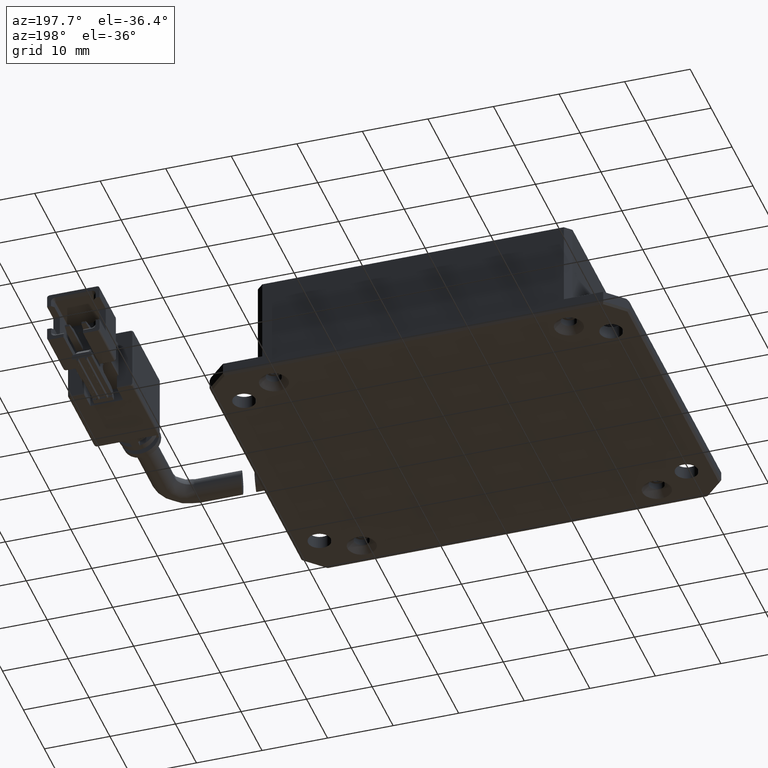
[diagram: clean part render]
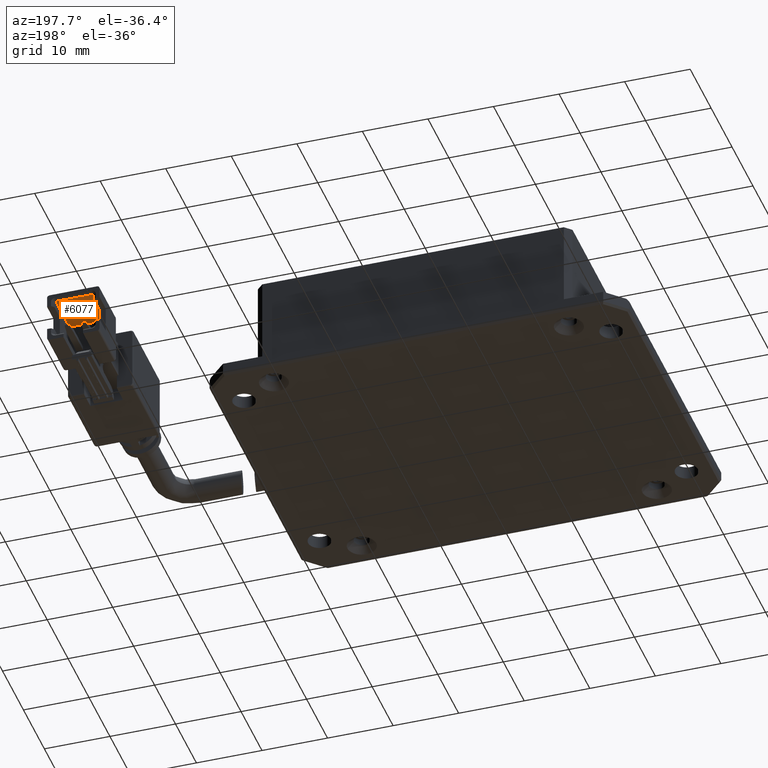
[diagram: same view with one face highlighted and labeled with its STEP entity id]
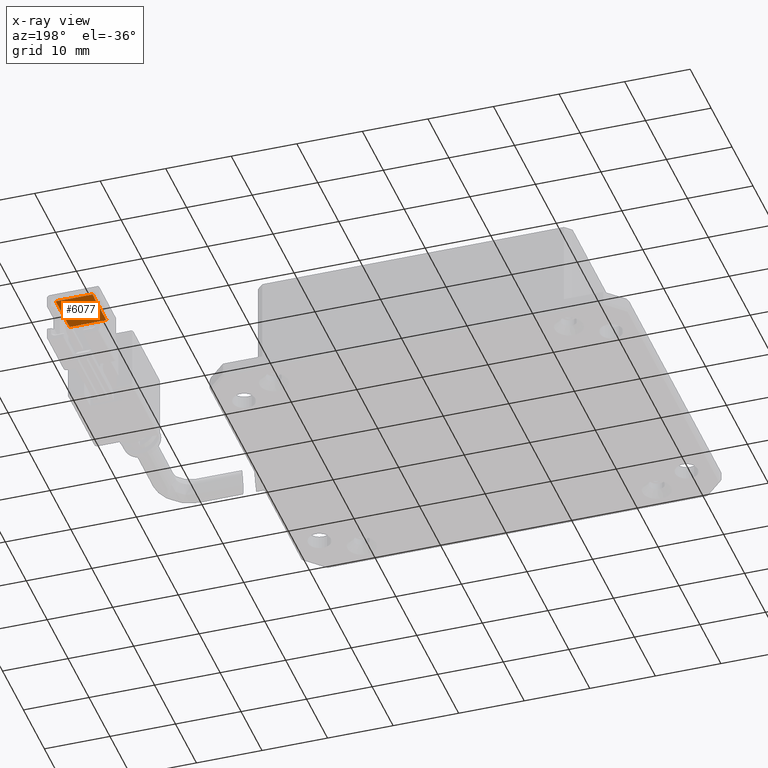
[diagram: x-ray of the same camera — body ghosted, the highlighted face saturated]
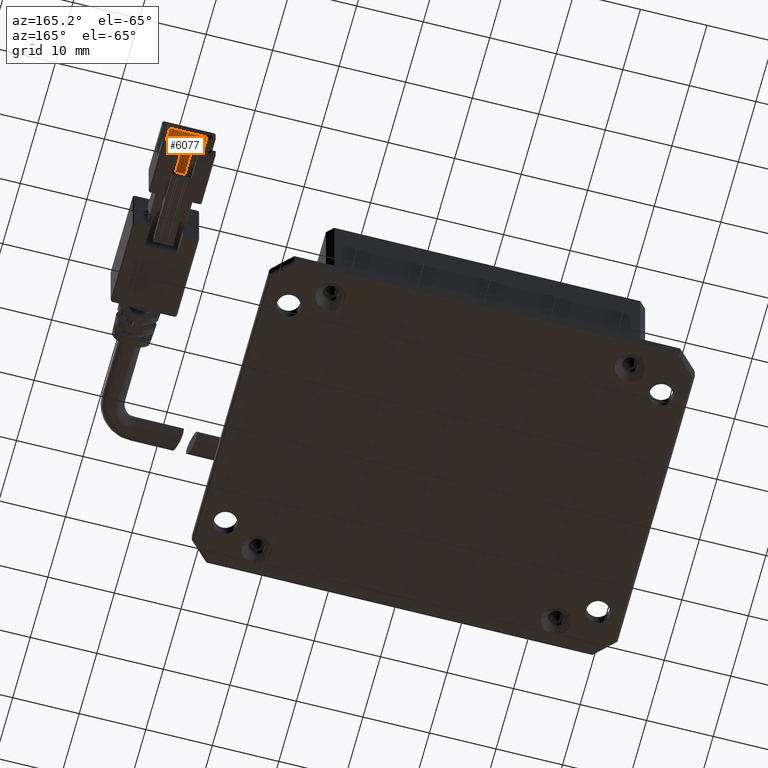
[diagram: same view with one face highlighted and labeled with its STEP entity id]
A machine part, auxiliary view. The second image highlights one B-rep face of the part: STEP entity #6077.
The next image is the same camera in x-ray: the body ghosted, the highlighted face saturated — about 0% of this face is hidden behind the body in this view.
A second angle (auxiliary view) of the same face is appended — the face is thin or edge-on in the first view.
In plain terms, the highlighted planar face has unit normal (-0, 0, 1).
Its self-contained STEP definition (entity closure, byte-faithful):
#253 = EDGE_LOOP ( 'NONE', ( #10387, #15920, #12951, #11914 ) ) ;
#542 = CARTESIAN_POINT ( 'NONE',  ( 50.09316533027873700, 32.29095074455903400, 7.999999999983693900 ) ) ;
#1178 = LINE ( 'NONE', #17366, #8606 ) ;
#1831 = VECTOR ( 'NONE', #6989, 1000.000000000000000 ) ;
#3221 = DIRECTION ( 'NONE',  ( -1.000000000000000000, -3.081487911019577400E-033, -8.673617379884010800E-017 ) ) ;
#3717 = FACE_OUTER_BOUND ( 'NONE', #253, .T. ) ;
#4481 = EDGE_CURVE ( 'NONE', #18850, #12792, #6058, .T. ) ;
#6058 = LINE ( 'NONE', #11597, #1831 ) ;
#6077 = ADVANCED_FACE ( 'NONE', ( #3717 ), #20073, .F. ) ;
#6894 = DIRECTION ( 'NONE',  ( 1.000000000000000000, 3.081487911019577400E-033, 8.673617379884010800E-017 ) ) ;
#6989 = DIRECTION ( 'NONE',  ( 3.081487911019577400E-033, -1.000000000000000000, 2.672764710092188000E-049 ) ) ;
#7118 = VECTOR ( 'NONE', #3221, 1000.000000000000000 ) ;
#7493 = DIRECTION ( 'NONE',  ( -8.673617379884010800E-017, 0.0000000000000000000, 1.000000000000000000 ) ) ;
#8606 = VECTOR ( 'NONE', #11061, 1000.000000000000000 ) ;
#8898 = EDGE_CURVE ( 'NONE', #12792, #14946, #14815, .T. ) ;
#10218 = CARTESIAN_POINT ( 'NONE',  ( 44.29316533027874700, 38.89095074455903500, 7.999999999983693900 ) ) ;
#10387 = ORIENTED_EDGE ( 'NONE', *, *, #15478, .F. ) ;
#10661 = AXIS2_PLACEMENT_3D ( 'NONE', #16943, #7493, #18556 ) ;
#11061 = DIRECTION ( 'NONE',  ( -3.081487911019577400E-033, 1.000000000000000000, -2.672764710092188000E-049 ) ) ;
#11158 = CARTESIAN_POINT ( 'NONE',  ( 44.09316533027873700, 38.89095074455903500, 7.999999999983693900 ) ) ;
#11597 = CARTESIAN_POINT ( 'NONE',  ( 44.29316533027874700, 32.29095074455903400, 7.999999999983693900 ) ) ;
#11914 = ORIENTED_EDGE ( 'NONE', *, *, #4481, .F. ) ;
#12792 = VERTEX_POINT ( 'NONE', #15049 ) ;
#12951 = ORIENTED_EDGE ( 'NONE', *, *, #8898, .F. ) ;
#14307 = VECTOR ( 'NONE', #6894, 1000.000000000000000 ) ;
#14815 = LINE ( 'NONE', #542, #14307 ) ;
#14946 = VERTEX_POINT ( 'NONE', #15843 ) ;
#15049 = CARTESIAN_POINT ( 'NONE',  ( 44.29316533027874700, 32.29095074455903400, 7.999999999983693900 ) ) ;
#15066 = VERTEX_POINT ( 'NONE', #16201 ) ;
#15478 = EDGE_CURVE ( 'NONE', #15066, #18850, #19739, .T. ) ;
#15843 = CARTESIAN_POINT ( 'NONE',  ( 49.89316533027874100, 32.29095074455903400, 7.999999999983693900 ) ) ;
#15920 = ORIENTED_EDGE ( 'NONE', *, *, #17662, .F. ) ;
#16201 = CARTESIAN_POINT ( 'NONE',  ( 49.89316533027874100, 38.89095074455903500, 7.999999999983693900 ) ) ;
#16943 = CARTESIAN_POINT ( 'NONE',  ( 44.09316533027873700, 32.29095074455903400, 7.999999999983693900 ) ) ;
#17366 = CARTESIAN_POINT ( 'NONE',  ( 49.89316533027874100, 32.29095074455903400, 7.999999999983693900 ) ) ;
#17662 = EDGE_CURVE ( 'NONE', #14946, #15066, #1178, .T. ) ;
#18556 = DIRECTION ( 'NONE',  ( 1.000000000000000000, 3.081487911019577400E-033, 8.673617379884010800E-017 ) ) ;
#18850 = VERTEX_POINT ( 'NONE', #10218 ) ;
#19739 = LINE ( 'NONE', #11158, #7118 ) ;
#20073 = PLANE ( 'NONE',  #10661 ) ;